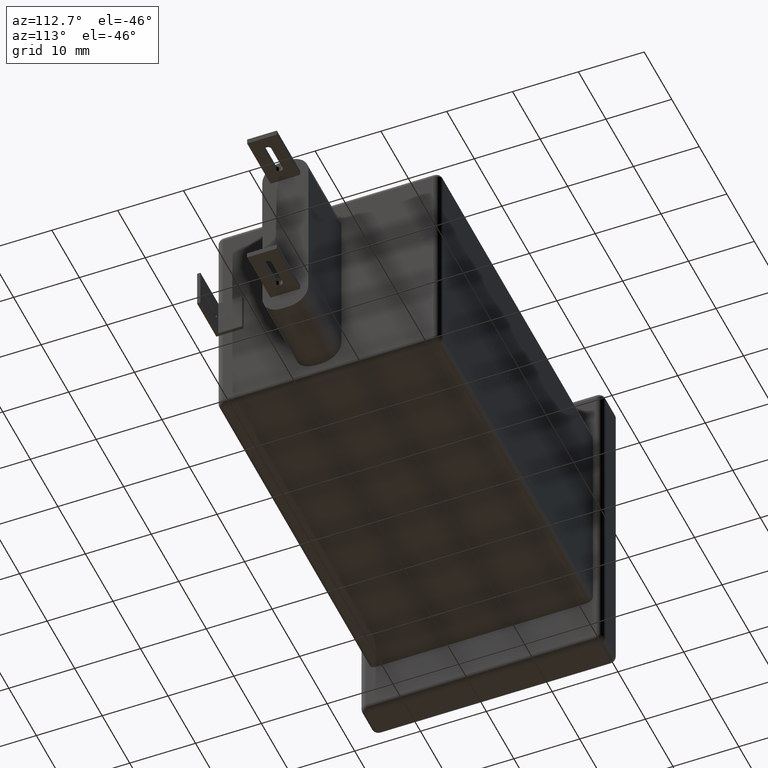
[diagram: clean part render]
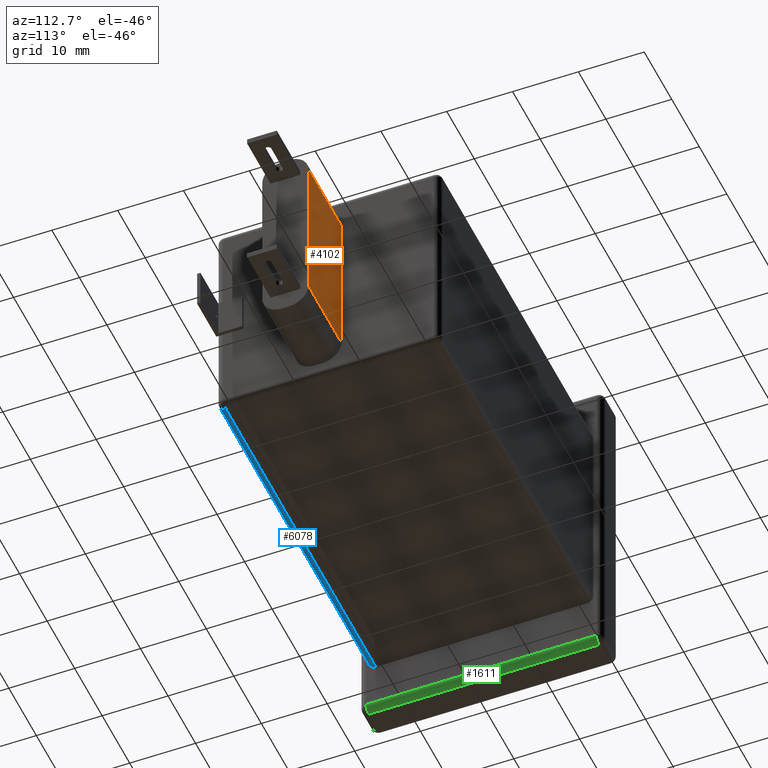
[diagram: same view with three faces highlighted in distinct colors, each labeled with its STEP entity id]
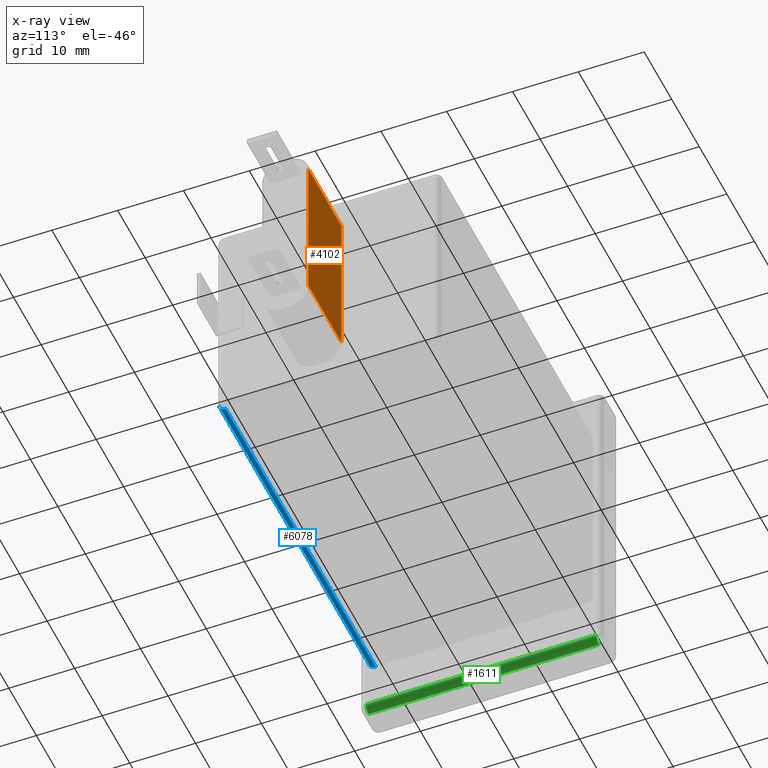
[diagram: x-ray of the same camera — body ghosted, the three highlighted faces saturated]
A machine part, auxiliary view with three faces highlighted in distinct colors.
The next image is the same camera in x-ray (body ghosted, the three faces saturated) — at least one of them is partly hidden behind the body in this view.
Their STEP definitions:

[orange] entity #4102 — the highlighted planar face has unit normal (0, -1, 0).
#4 = LINE ( 'NONE', #1933, #3127 ) ;
#249 = CARTESIAN_POINT ( 'NONE',  ( 61.00000000000000000, -16.50000000000000000, 13.22885790081624100 ) ) ;
#283 = LINE ( 'NONE', #1795, #5694 ) ;
#513 = CARTESIAN_POINT ( 'NONE',  ( 73.00000000000000000, -16.50000000000000000, 13.22885790081624100 ) ) ;
#574 = VERTEX_POINT ( 'NONE', #3460 ) ;
#734 = VECTOR ( 'NONE', #3840, 1000.000000000000000 ) ;
#771 = VECTOR ( 'NONE', #5241, 1000.000000000000000 ) ;
#1795 = CARTESIAN_POINT ( 'NONE',  ( 61.00000000000000000, -16.50000000000000000, 39.77114209918374100 ) ) ;
#1918 = EDGE_CURVE ( 'NONE', #2423, #574, #283, .T. ) ;
#1933 = CARTESIAN_POINT ( 'NONE',  ( 73.00000000000000000, -16.50000000000000000, 39.77114209918374100 ) ) ;
#2150 = DIRECTION ( 'NONE',  ( 0.0000000000000000000, -1.000000000000000000, 0.0000000000000000000 ) ) ;
#2286 = EDGE_LOOP ( 'NONE', ( #2682, #6225, #5482, #4290 ) ) ;
#2423 = VERTEX_POINT ( 'NONE', #249 ) ;
#2657 = DIRECTION ( 'NONE',  ( 0.0000000000000000000, -0.0000000000000000000, -1.000000000000000000 ) ) ;
#2682 = ORIENTED_EDGE ( 'NONE', *, *, #5975, .F. ) ;
#3127 = VECTOR ( 'NONE', #4253, 1000.000000000000000 ) ;
#3316 = CARTESIAN_POINT ( 'NONE',  ( 73.00000000000000000, -16.50000000000000000, 36.77114209918373400 ) ) ;
#3460 = CARTESIAN_POINT ( 'NONE',  ( 61.00000000000000000, -16.50000000000000000, 36.77114209918373400 ) ) ;
#3717 = EDGE_CURVE ( 'NONE', #6839, #2423, #5137, .T. ) ;
#3802 = AXIS2_PLACEMENT_3D ( 'NONE', #5539, #2150, #2657 ) ;
#3840 = DIRECTION ( 'NONE',  ( 1.000000000000000000, -0.0000000000000000000, -0.0000000000000000000 ) ) ;
#4060 = EDGE_CURVE ( 'NONE', #574, #4809, #4064, .T. ) ;
#4064 = LINE ( 'NONE', #3316, #734 ) ;
#4102 = ADVANCED_FACE ( 'NONE', ( #6895 ), #4967, .F. ) ;
#4253 = DIRECTION ( 'NONE',  ( -0.0000000000000000000, -0.0000000000000000000, 1.000000000000000000 ) ) ;
#4290 = ORIENTED_EDGE ( 'NONE', *, *, #4060, .T. ) ;
#4809 = VERTEX_POINT ( 'NONE', #5594 ) ;
#4967 = PLANE ( 'NONE',  #3802 ) ;
#5137 = LINE ( 'NONE', #5864, #771 ) ;
#5211 = DIRECTION ( 'NONE',  ( -0.0000000000000000000, -0.0000000000000000000, 1.000000000000000000 ) ) ;
#5241 = DIRECTION ( 'NONE',  ( -1.000000000000000000, 0.0000000000000000000, 0.0000000000000000000 ) ) ;
#5482 = ORIENTED_EDGE ( 'NONE', *, *, #1918, .T. ) ;
#5539 = CARTESIAN_POINT ( 'NONE',  ( 73.00000000000000000, -16.50000000000000000, 39.77114209918374100 ) ) ;
#5594 = CARTESIAN_POINT ( 'NONE',  ( 73.00000000000000000, -16.50000000000000000, 36.77114209918373400 ) ) ;
#5694 = VECTOR ( 'NONE', #5211, 1000.000000000000000 ) ;
#5864 = CARTESIAN_POINT ( 'NONE',  ( 73.00000000000000000, -16.50000000000000000, 13.22885790081624100 ) ) ;
#5975 = EDGE_CURVE ( 'NONE', #6839, #4809, #4, .T. ) ;
#6225 = ORIENTED_EDGE ( 'NONE', *, *, #3717, .T. ) ;
#6839 = VERTEX_POINT ( 'NONE', #513 ) ;
#6895 = FACE_OUTER_BOUND ( 'NONE', #2286, .T. ) ;

[blue] entity #6078 — the highlighted cylindrical surface (edge-blend (fillet) strip) has radius 1 mm, axis along (-1, 0, 0).
#3 = LINE ( 'NONE', #229, #4270 ) ;
#158 = CYLINDRICAL_SURFACE ( 'NONE', #3508, 1.000000000000000900 ) ;
#170 = VERTEX_POINT ( 'NONE', #3233 ) ;
#229 = CARTESIAN_POINT ( 'NONE',  ( 61.00000000000000000, -34.49999999999999300, 7.999999999999986700 ) ) ;
#339 = ORIENTED_EDGE ( 'NONE', *, *, #2944, .F. ) ;
#439 = DIRECTION ( 'NONE',  ( 0.0000000000000000000, 0.0000000000000000000, -1.000000000000000000 ) ) ;
#456 = DIRECTION ( 'NONE',  ( 1.000000000000000000, -0.0000000000000000000, -0.0000000000000000000 ) ) ;
#619 = CARTESIAN_POINT ( 'NONE',  ( 5.499999999999998200, -34.49999999999999300, 8.999999999999987600 ) ) ;
#1038 = CARTESIAN_POINT ( 'NONE',  ( 60.00000000000000000, -34.49999999999999300, 8.999999999999987600 ) ) ;
#1093 = VECTOR ( 'NONE', #456, 1000.000000000000000 ) ;
#1134 = CIRCLE ( 'NONE', #1415, 1.000000000000000900 ) ;
#1251 = ORIENTED_EDGE ( 'NONE', *, *, #1559, .F. ) ;
#1415 = AXIS2_PLACEMENT_3D ( 'NONE', #1038, #7085, #439 ) ;
#1468 = DIRECTION ( 'NONE',  ( 0.0000000000000000000, 0.0000000000000000000, 1.000000000000000000 ) ) ;
#1559 = EDGE_CURVE ( 'NONE', #170, #1577, #5881, .T. ) ;
#1577 = VERTEX_POINT ( 'NONE', #5423 ) ;
#1594 = CIRCLE ( 'NONE', #5237, 1.000000000000000900 ) ;
#1753 = FACE_OUTER_BOUND ( 'NONE', #3762, .T. ) ;
#2428 = EDGE_CURVE ( 'NONE', #2656, #6681, #3, .T. ) ;
#2656 = VERTEX_POINT ( 'NONE', #5586 ) ;
#2944 = EDGE_CURVE ( 'NONE', #6681, #170, #1594, .T. ) ;
#3149 = DIRECTION ( 'NONE',  ( -1.000000000000000000, 0.0000000000000000000, 0.0000000000000000000 ) ) ;
#3173 = DIRECTION ( 'NONE',  ( -1.000000000000000000, 0.0000000000000000000, 0.0000000000000000000 ) ) ;
#3233 = CARTESIAN_POINT ( 'NONE',  ( 5.500000000000000000, -35.50000000000000000, 8.999999999999987600 ) ) ;
#3385 = DIRECTION ( 'NONE',  ( -1.000000000000000000, -0.0000000000000000000, 0.0000000000000000000 ) ) ;
#3438 = ORIENTED_EDGE ( 'NONE', *, *, #2428, .F. ) ;
#3457 = EDGE_CURVE ( 'NONE', #1577, #2656, #1134, .T. ) ;
#3508 = AXIS2_PLACEMENT_3D ( 'NONE', #5958, #3149, #1468 ) ;
#3762 = EDGE_LOOP ( 'NONE', ( #339, #3438, #4210, #1251 ) ) ;
#4210 = ORIENTED_EDGE ( 'NONE', *, *, #3457, .F. ) ;
#4270 = VECTOR ( 'NONE', #3173, 1000.000000000000000 ) ;
#5237 = AXIS2_PLACEMENT_3D ( 'NONE', #619, #3385, #7168 ) ;
#5423 = CARTESIAN_POINT ( 'NONE',  ( 60.00000000000000000, -35.50000000000000000, 8.999999999999987600 ) ) ;
#5493 = CARTESIAN_POINT ( 'NONE',  ( 61.00000000000000000, -35.50000000000000000, 8.999999999999987600 ) ) ;
#5586 = CARTESIAN_POINT ( 'NONE',  ( 60.00000000000000000, -34.49999999999999300, 7.999999999999986700 ) ) ;
#5881 = LINE ( 'NONE', #5493, #1093 ) ;
#5958 = CARTESIAN_POINT ( 'NONE',  ( 61.00000000000000000, -34.49999999999999300, 8.999999999999987600 ) ) ;
#6078 = ADVANCED_FACE ( 'NONE', ( #1753 ), #158, .T. ) ;
#6444 = CARTESIAN_POINT ( 'NONE',  ( 5.500000000000000000, -34.49999999999999300, 7.999999999999986700 ) ) ;
#6681 = VERTEX_POINT ( 'NONE', #6444 ) ;
#7085 = DIRECTION ( 'NONE',  ( 1.000000000000000000, 0.0000000000000000000, 0.0000000000000000000 ) ) ;
#7168 = DIRECTION ( 'NONE',  ( 0.0000000000000000000, 0.0000000000000000000, 1.000000000000000000 ) ) ;

[green] entity #1611 — the highlighted cylindrical surface (edge-blend (fillet) strip) has radius 1 mm, axis along (0, 1, 0).
#374 = VERTEX_POINT ( 'NONE', #2542 ) ;
#393 = CIRCLE ( 'NONE', #2832, 1.000000000000000200 ) ;
#530 = CARTESIAN_POINT ( 'NONE',  ( 4.500000000000000000, -1.224646799147353500E-016, 1.000000000000000000 ) ) ;
#762 = DIRECTION ( 'NONE',  ( 0.0000000000000000000, -1.000000000000000000, -2.168404344971008900E-016 ) ) ;
#939 = ORIENTED_EDGE ( 'NONE', *, *, #1051, .F. ) ;
#1004 = DIRECTION ( 'NONE',  ( 0.0000000000000000000, -1.224646799147353500E-016, 1.000000000000000000 ) ) ;
#1051 = EDGE_CURVE ( 'NONE', #1461, #2731, #3382, .T. ) ;
#1138 = DIRECTION ( 'NONE',  ( 0.0000000000000000000, -1.000000000000000000, 0.0000000000000000000 ) ) ;
#1160 = DIRECTION ( 'NONE',  ( -0.0000000000000000000, -1.000000000000000000, -1.224646799147353500E-016 ) ) ;
#1301 = ORIENTED_EDGE ( 'NONE', *, *, #6564, .T. ) ;
#1325 = CARTESIAN_POINT ( 'NONE',  ( 4.500000000000000000, -1.000000000000000000, 0.9999999999999997800 ) ) ;
#1461 = VERTEX_POINT ( 'NONE', #5270 ) ;
#1467 = AXIS2_PLACEMENT_3D ( 'NONE', #2850, #1138, #2243 ) ;
#1611 = ADVANCED_FACE ( 'NONE', ( #5185 ), #6890, .T. ) ;
#1864 = EDGE_LOOP ( 'NONE', ( #1301, #939, #4966, #5992 ) ) ;
#1905 = VECTOR ( 'NONE', #3226, 1000.000000000000000 ) ;
#2030 = EDGE_CURVE ( 'NONE', #6426, #374, #5617, .T. ) ;
#2243 = DIRECTION ( 'NONE',  ( 0.0000000000000000000, 0.0000000000000000000, -1.000000000000000000 ) ) ;
#2542 = CARTESIAN_POINT ( 'NONE',  ( 4.500000000000000000, -36.00000000000000000, -4.408728476930471600E-015 ) ) ;
#2731 = VERTEX_POINT ( 'NONE', #3739 ) ;
#2832 = AXIS2_PLACEMENT_3D ( 'NONE', #1325, #762, #6388 ) ;
#2850 = CARTESIAN_POINT ( 'NONE',  ( 4.500000000000000000, -36.00000000000000000, 0.9999999999999956700 ) ) ;
#3086 = AXIS2_PLACEMENT_3D ( 'NONE', #530, #6053, #1004 ) ;
#3226 = DIRECTION ( 'NONE',  ( 0.0000000000000000000, 1.000000000000000000, 1.224646799147353500E-016 ) ) ;
#3250 = VECTOR ( 'NONE', #1160, 1000.000000000000000 ) ;
#3297 = EDGE_CURVE ( 'NONE', #374, #1461, #6425, .T. ) ;
#3382 = LINE ( 'NONE', #3777, #1905 ) ;
#3739 = CARTESIAN_POINT ( 'NONE',  ( 5.500000000000000000, -1.000000000000000000, 0.9999999999999997800 ) ) ;
#3777 = CARTESIAN_POINT ( 'NONE',  ( 5.500000000000000000, -1.224646799147353500E-016, 1.000000000000000000 ) ) ;
#4966 = ORIENTED_EDGE ( 'NONE', *, *, #3297, .F. ) ;
#5185 = FACE_OUTER_BOUND ( 'NONE', #1864, .T. ) ;
#5270 = CARTESIAN_POINT ( 'NONE',  ( 5.500000000000000000, -36.00000000000000000, 0.9999999999999956700 ) ) ;
#5577 = CARTESIAN_POINT ( 'NONE',  ( 4.500000000000000000, -0.9999999999999997800, -1.224646799147353200E-016 ) ) ;
#5617 = LINE ( 'NONE', #6683, #3250 ) ;
#5992 = ORIENTED_EDGE ( 'NONE', *, *, #2030, .F. ) ;
#6053 = DIRECTION ( 'NONE',  ( 0.0000000000000000000, 1.000000000000000000, 1.224646799147353500E-016 ) ) ;
#6388 = DIRECTION ( 'NONE',  ( 0.0000000000000000000, -2.168404344971008400E-016, 1.000000000000000000 ) ) ;
#6425 = CIRCLE ( 'NONE', #1467, 1.000000000000000000 ) ;
#6426 = VERTEX_POINT ( 'NONE', #5577 ) ;
#6564 = EDGE_CURVE ( 'NONE', #6426, #2731, #393, .T. ) ;
#6683 = CARTESIAN_POINT ( 'NONE',  ( 4.500000000000000000, 0.0000000000000000000, 0.0000000000000000000 ) ) ;
#6890 = CYLINDRICAL_SURFACE ( 'NONE', #3086, 1.000000000000000000 ) ;